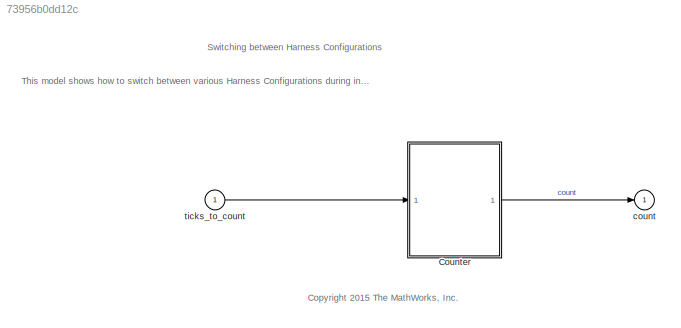
MODEL slx_73956b0dd12c
KIND model
CONFIG AbsTol = auto
CONFIG FixedStep = T
CONFIG MaxStep = auto
CONFIG MinStep = auto
CONFIG PostLoadFcn = % Sample time\nT=0.1;\n[ticks_to_count, reset] = sltestSwitchHarnessConfigurationGenData(T);\n\n
CONFIG RelTol = 1e-3
CONFIG SampleTimeConstraint = Unconstrained
CONFIG Solver = FixedStepDiscrete
CONFIG SolverMode = Auto
CONFIG SolverName = FixedStepDiscrete
CONFIG StartTime = 0.0
CONFIG StopTime = 10.0
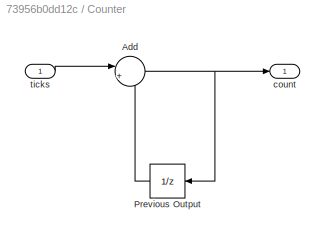
BLOCK [SubSystem] Counter
  Ports = [1, 1]
  RTWFcnNameOpts = Use subsystem name
  RTWSystemCode = Nonreusable function
  RequestExecContextInheritance = off
  Variant = off
BLOCK [Sum] Counter/Add
  IconShape = round
  InputSameDT = off
  Inputs = |++
  OutDataTypeStr = uint8
  Ports = [2, 1]
  SaturateOnIntegerOverflow = off
BLOCK [UnitDelay] Counter/Previous Output
  InitialCondition = 15
  SampleTime = T
BLOCK [Outport] Counter/count
  IconDisplay = Port number
  InitialOutput = 15
BLOCK [Inport] Counter/ticks
  IconDisplay = Port number
BLOCK [Outport] count
  IconDisplay = Port number
BLOCK [Inport] ticks_to_count
  IconDisplay = Port number
  OutDataTypeStr = boolean
  PortDimensions = 1
  SampleTime = T
  SamplingMode = Sample based
  SignalType = real
ANNOTATION (root): Switching between Harness Configurations
ANNOTATION (root): <copyright redacted>
ANNOTATION (root): This model shows how to switch between various Harness Configurations during incremental component development.
NET Counter/Add:1 -> Counter/Previous Output:1, Counter/count:1
LINE Counter/Previous Output:1 -> Counter/Add:2
LINE Counter/ticks:1 -> Counter/Add:1
LINE Counter:1 -> count:1
LINE ticks_to_count:1 -> Counter:1
note: NET lines group one-source signal fan-out (src -> all destinations, sorted); 1:1 wires keep LINE
